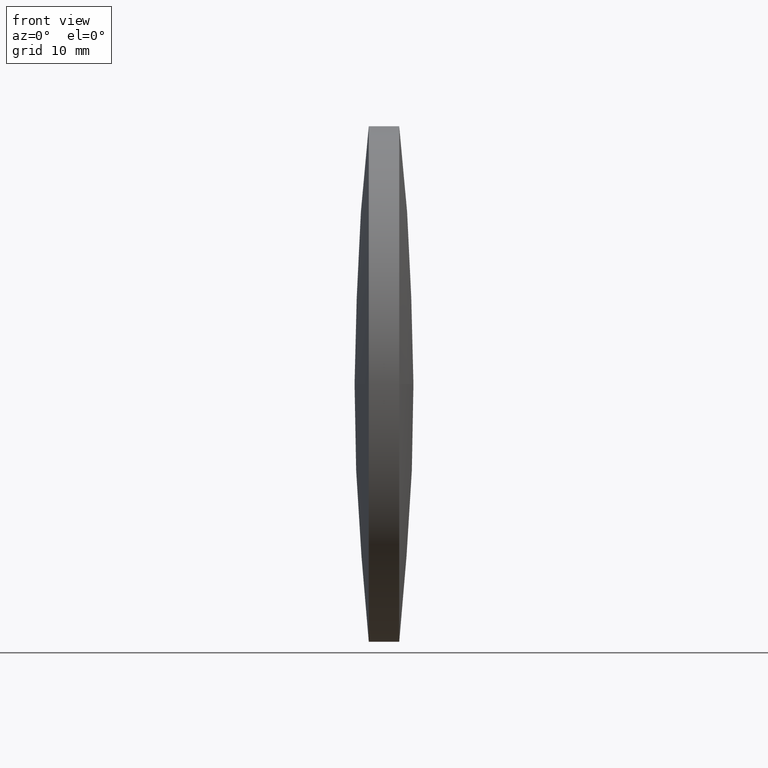
[diagram: clean part render]
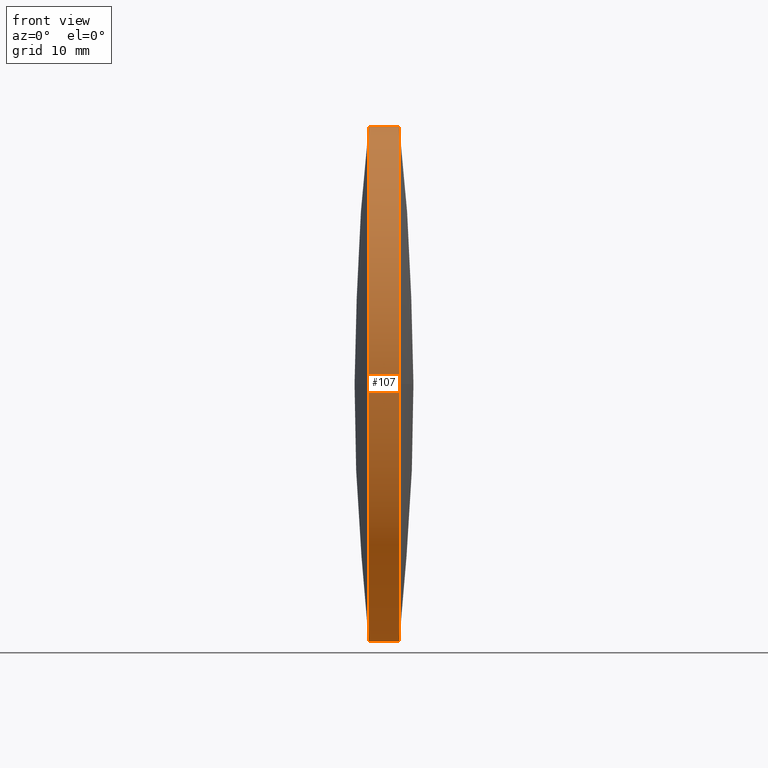
[diagram: same view with one face highlighted and labeled with its STEP entity id]
A machine part, front view. The second image highlights one B-rep face of the part: STEP entity #107.
In plain terms, the highlighted cylindrical surface (partial cylindrical patch) has radius 25.4 mm, axis along (-1, -0, -0).
Its self-contained STEP definition (entity closure, byte-faithful):
#17 = VERTEX_POINT ( 'NONE', #187 ) ;
#20 = LINE ( 'NONE', #142, #95 ) ;
#23 = CARTESIAN_POINT ( 'NONE',  ( 165.7441079421506900, 97.23222604636956100, -25.39999999999999100 ) ) ;
#25 = DIRECTION ( 'NONE',  ( -1.000000000000000000, -0.0000000000000000000, -0.0000000000000000000 ) ) ;
#29 = CIRCLE ( 'NONE', #327, 25.39999999999999100 ) ;
#30 = DIRECTION ( 'NONE',  ( -1.000000000000000000, -0.0000000000000000000, -0.0000000000000000000 ) ) ;
#33 = DIRECTION ( 'NONE',  ( -1.000000000000000000, -0.0000000000000000000, -0.0000000000000000000 ) ) ;
#53 = DIRECTION ( 'NONE',  ( 0.0000000000000000000, 0.0000000000000000000, 1.000000000000000000 ) ) ;
#59 = DIRECTION ( 'NONE',  ( -1.000000000000000000, -0.0000000000000000000, -0.0000000000000000000 ) ) ;
#76 = VECTOR ( 'NONE', #25, 1000.000000000000000 ) ;
#85 = EDGE_LOOP ( 'NONE', ( #342, #147, #263, #153, #239, #205 ) ) ;
#86 = CARTESIAN_POINT ( 'NONE',  ( 174.4163664064679400, 97.23222604636956100, 0.0000000000000000000 ) ) ;
#89 = FACE_OUTER_BOUND ( 'NONE', #85, .T. ) ;
#91 = DIRECTION ( 'NONE',  ( 0.0000000000000000000, 0.0000000000000000000, 1.000000000000000000 ) ) ;
#95 = VECTOR ( 'NONE', #222, 1000.000000000000000 ) ;
#99 = EDGE_CURVE ( 'NONE', #17, #128, #29, .T. ) ;
#100 = VERTEX_POINT ( 'NONE', #235 ) ;
#107 = ADVANCED_FACE ( 'NONE', ( #89 ), #145, .T. ) ;
#109 = CARTESIAN_POINT ( 'NONE',  ( 174.4163664064679700, 71.83222604636924300, -3.110602869834216900E-015 ) ) ;
#112 = CARTESIAN_POINT ( 'NONE',  ( 174.4163664064679400, 97.23222604636956100, -25.39999999999999100 ) ) ;
#121 = AXIS2_PLACEMENT_3D ( 'NONE', #337, #158, #259 ) ;
#128 = VERTEX_POINT ( 'NONE', #262 ) ;
#142 = CARTESIAN_POINT ( 'NONE',  ( 165.7441079421506900, 97.23222604636956100, 25.39999999999999100 ) ) ;
#145 = CYLINDRICAL_SURFACE ( 'NONE', #121, 25.39999999999999100 ) ;
#147 = ORIENTED_EDGE ( 'NONE', *, *, #241, .T. ) ;
#153 = ORIENTED_EDGE ( 'NONE', *, *, #339, .T. ) ;
#158 = DIRECTION ( 'NONE',  ( -1.000000000000000000, -0.0000000000000000000, -0.0000000000000000000 ) ) ;
#164 = EDGE_CURVE ( 'NONE', #100, #17, #216, .T. ) ;
#166 = CARTESIAN_POINT ( 'NONE',  ( 174.4163664064679400, 97.23222604636956100, 25.39999999999999100 ) ) ;
#167 = VERTEX_POINT ( 'NONE', #109 ) ;
#169 = CIRCLE ( 'NONE', #206, 25.39999999999999100 ) ;
#170 = VERTEX_POINT ( 'NONE', #166 ) ;
#174 = EDGE_CURVE ( 'NONE', #167, #170, #169, .T. ) ;
#175 = LINE ( 'NONE', #23, #76 ) ;
#187 = CARTESIAN_POINT ( 'NONE',  ( 171.4164086921822200, 71.83222604636939900, -3.110602869834235400E-015 ) ) ;
#205 = ORIENTED_EDGE ( 'NONE', *, *, #164, .F. ) ;
#206 = AXIS2_PLACEMENT_3D ( 'NONE', #86, #321, #315 ) ;
#209 = EDGE_CURVE ( 'NONE', #217, #100, #175, .T. ) ;
#216 = CIRCLE ( 'NONE', #284, 25.39999999999999100 ) ;
#217 = VERTEX_POINT ( 'NONE', #112 ) ;
#222 = DIRECTION ( 'NONE',  ( -1.000000000000000000, -0.0000000000000000000, -0.0000000000000000000 ) ) ;
#226 = CIRCLE ( 'NONE', #343, 25.39999999999999100 ) ;
#235 = CARTESIAN_POINT ( 'NONE',  ( 171.4164086921822200, 97.23222604636956100, -25.39999999999999100 ) ) ;
#239 = ORIENTED_EDGE ( 'NONE', *, *, #99, .F. ) ;
#241 = EDGE_CURVE ( 'NONE', #217, #167, #226, .T. ) ;
#246 = CARTESIAN_POINT ( 'NONE',  ( 174.4163664064679400, 97.23222604636956100, 0.0000000000000000000 ) ) ;
#259 = DIRECTION ( 'NONE',  ( 0.0000000000000000000, 0.0000000000000000000, 1.000000000000000000 ) ) ;
#262 = CARTESIAN_POINT ( 'NONE',  ( 171.4164086921822200, 97.23222604636956100, 25.39999999999999100 ) ) ;
#263 = ORIENTED_EDGE ( 'NONE', *, *, #174, .T. ) ;
#284 = AXIS2_PLACEMENT_3D ( 'NONE', #344, #59, #53 ) ;
#315 = DIRECTION ( 'NONE',  ( 0.0000000000000000000, 0.0000000000000000000, 1.000000000000000000 ) ) ;
#320 = CARTESIAN_POINT ( 'NONE',  ( 171.4164086921822200, 97.23222604636956100, 0.0000000000000000000 ) ) ;
#321 = DIRECTION ( 'NONE',  ( -1.000000000000000000, -0.0000000000000000000, -0.0000000000000000000 ) ) ;
#327 = AXIS2_PLACEMENT_3D ( 'NONE', #320, #30, #341 ) ;
#337 = CARTESIAN_POINT ( 'NONE',  ( 165.7441079421506900, 97.23222604636956100, 0.0000000000000000000 ) ) ;
#339 = EDGE_CURVE ( 'NONE', #170, #128, #20, .T. ) ;
#341 = DIRECTION ( 'NONE',  ( 0.0000000000000000000, 0.0000000000000000000, 1.000000000000000000 ) ) ;
#342 = ORIENTED_EDGE ( 'NONE', *, *, #209, .F. ) ;
#343 = AXIS2_PLACEMENT_3D ( 'NONE', #246, #33, #91 ) ;
#344 = CARTESIAN_POINT ( 'NONE',  ( 171.4164086921822200, 97.23222604636956100, 0.0000000000000000000 ) ) ;